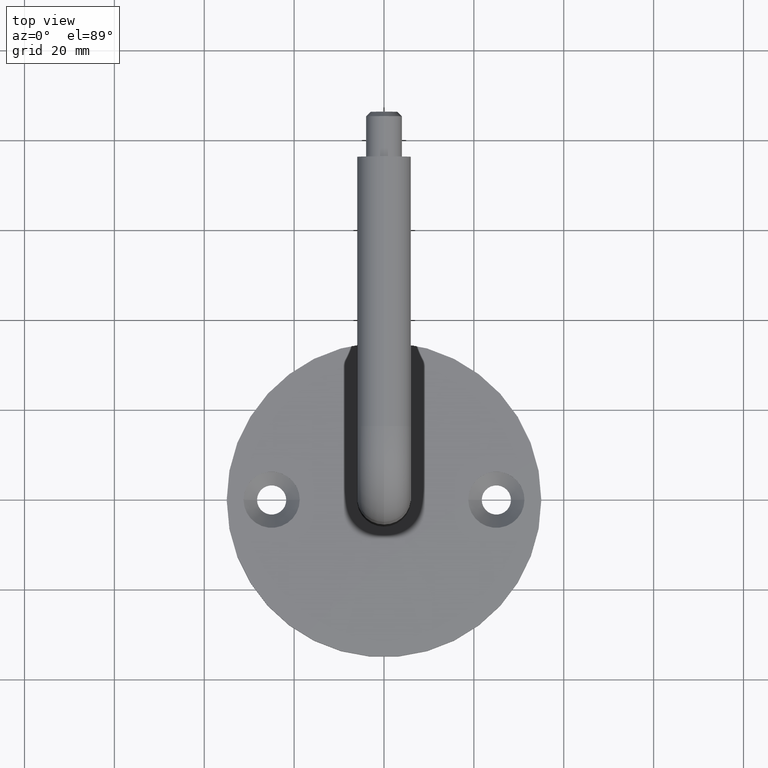
[diagram: clean part render]
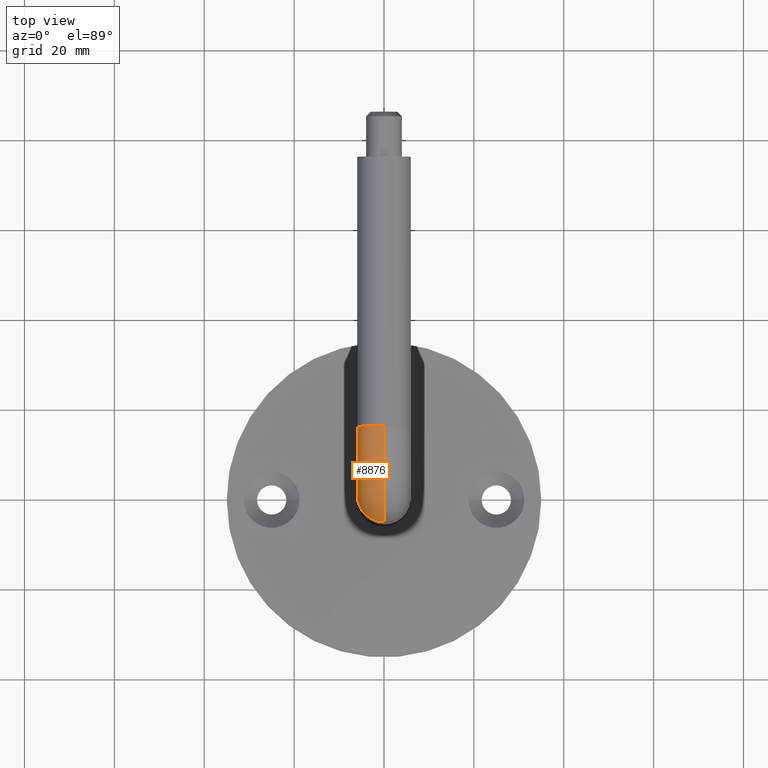
[diagram: same view with one face highlighted and labeled with its STEP entity id]
A machine part, top view. The second image highlights one B-rep face of the part: STEP entity #8876.
In plain terms, the highlighted toroidal blend (fillet) surface has major radius 15 mm and minor (blend) radius 6 mm.
Its self-contained STEP definition (entity closure, byte-faithful):
#1182 = ORIENTED_EDGE ( 'NONE', *, *, #9210, .T. ) ;
#1680 = DIRECTION ( 'NONE',  ( -1.000000000000000000, -0.000000000000000000, 0.000000000000000000 ) ) ;
#1727 = CARTESIAN_POINT ( 'NONE',  ( 0.000000000000000000, 14.99999999999999289, 81.00000000000000000 ) ) ;
#1768 = DIRECTION ( 'NONE',  ( 0.000000000000000000, 0.000000000000000000, 1.000000000000000000 ) ) ;
#3551 = DIRECTION ( 'NONE',  ( 1.000000000000000000, 0.000000000000000000, 0.000000000000000000 ) ) ;
#3769 = AXIS2_PLACEMENT_3D ( 'NONE', #13145, #16502, #6471 ) ;
#3991 = CIRCLE ( 'NONE', #7928, 6.000000000000000888 ) ;
#4978 = ORIENTED_EDGE ( 'NONE', *, *, #21220, .T. ) ;
#5373 = VERTEX_POINT ( 'NONE', #13768 ) ;
#6471 = DIRECTION ( 'NONE',  ( 0.000000000000000000, 0.000000000000000000, 1.000000000000000000 ) ) ;
#6706 = FACE_OUTER_BOUND ( 'NONE', #11587, .T. ) ;
#7928 = AXIS2_PLACEMENT_3D ( 'NONE', #16747, #1768, #3551 ) ;
#8876 = ADVANCED_FACE ( 'NONE', ( #6706 ), #20983, .T. ) ;
#9193 = VERTEX_POINT ( 'NONE', #10161 ) ;
#9210 = EDGE_CURVE ( 'NONE', #9193, #19466, #3991, .T. ) ;
#9356 = CIRCLE ( 'NONE', #11149, 8.999999999999994671 ) ;
#10108 = ORIENTED_EDGE ( 'NONE', *, *, #13196, .F. ) ;
#10161 = CARTESIAN_POINT ( 'NONE',  ( 0.000000000000000000, 5.999999999999993783, 60.00000000000000000 ) ) ;
#11120 = DIRECTION ( 'NONE',  ( 0.000000000000000000, 0.000000000000000000, 1.000000000000000000 ) ) ;
#11149 = AXIS2_PLACEMENT_3D ( 'NONE', #11249, #1680, #13241 ) ;
#11249 = CARTESIAN_POINT ( 'NONE',  ( 7.347880794884120722E-16, 14.99999999999999289, 60.00000000000000000 ) ) ;
#11341 = CIRCLE ( 'NONE', #15317, 21.00000000000000355 ) ;
#11587 = EDGE_LOOP ( 'NONE', ( #1182, #4978, #10108, #13660 ) ) ;
#11701 = DIRECTION ( 'NONE',  ( -1.000000000000000000, -0.000000000000000000, 0.000000000000000000 ) ) ;
#12198 = CARTESIAN_POINT ( 'NONE',  ( 7.347880794884124666E-16, -6.000000000000008882, 60.00000000000000000 ) ) ;
#12685 = CIRCLE ( 'NONE', #16743, 6.000000000000000888 ) ;
#12812 = EDGE_CURVE ( 'NONE', #9193, #5373, #9356, .T. ) ;
#13145 = CARTESIAN_POINT ( 'NONE',  ( 0.000000000000000000, 14.99999999999999289, 60.00000000000000000 ) ) ;
#13196 = EDGE_CURVE ( 'NONE', #5373, #16789, #12685, .T. ) ;
#13241 = DIRECTION ( 'NONE',  ( 0.000000000000000000, 0.000000000000000000, 1.000000000000000000 ) ) ;
#13660 = ORIENTED_EDGE ( 'NONE', *, *, #12812, .F. ) ;
#13768 = CARTESIAN_POINT ( 'NONE',  ( 7.347880794884113820E-16, 14.99999999999999289, 68.99999999999998579 ) ) ;
#15317 = AXIS2_PLACEMENT_3D ( 'NONE', #16604, #11701, #11120 ) ;
#16502 = DIRECTION ( 'NONE',  ( -1.000000000000000000, -0.000000000000000000, 0.000000000000000000 ) ) ;
#16604 = CARTESIAN_POINT ( 'NONE',  ( 0.000000000000000000, 14.99999999999999289, 60.00000000000000000 ) ) ;
#16743 = AXIS2_PLACEMENT_3D ( 'NONE', #18734, #20643, #21074 ) ;
#16747 = CARTESIAN_POINT ( 'NONE',  ( 0.000000000000000000, -6.938893903907228378E-15, 60.00000000000000000 ) ) ;
#16789 = VERTEX_POINT ( 'NONE', #1727 ) ;
#18734 = CARTESIAN_POINT ( 'NONE',  ( 0.000000000000000000, 14.99999999999999289, 75.00000000000000000 ) ) ;
#19466 = VERTEX_POINT ( 'NONE', #12198 ) ;
#20643 = DIRECTION ( 'NONE',  ( 0.000000000000000000, 1.000000000000000000, 6.123233995736766036E-17 ) ) ;
#20983 = TOROIDAL_SURFACE ( 'NONE', #3769, 15.00000000000000000, 6.000000000000000888 ) ;
#21074 = DIRECTION ( 'NONE',  ( 1.000000000000000000, 0.000000000000000000, 0.000000000000000000 ) ) ;
#21220 = EDGE_CURVE ( 'NONE', #19466, #16789, #11341, .T. ) ;